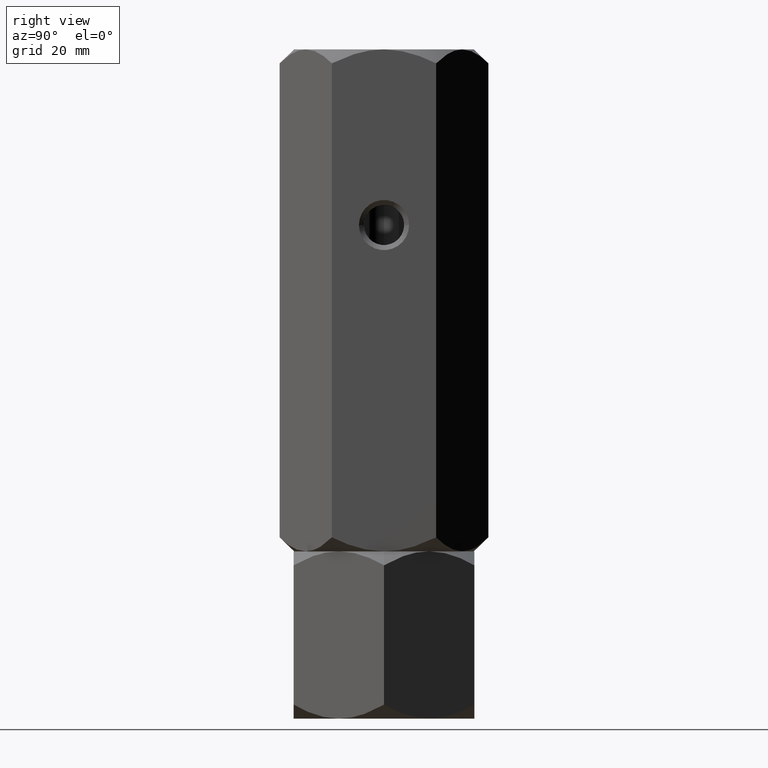
[diagram: clean part render]
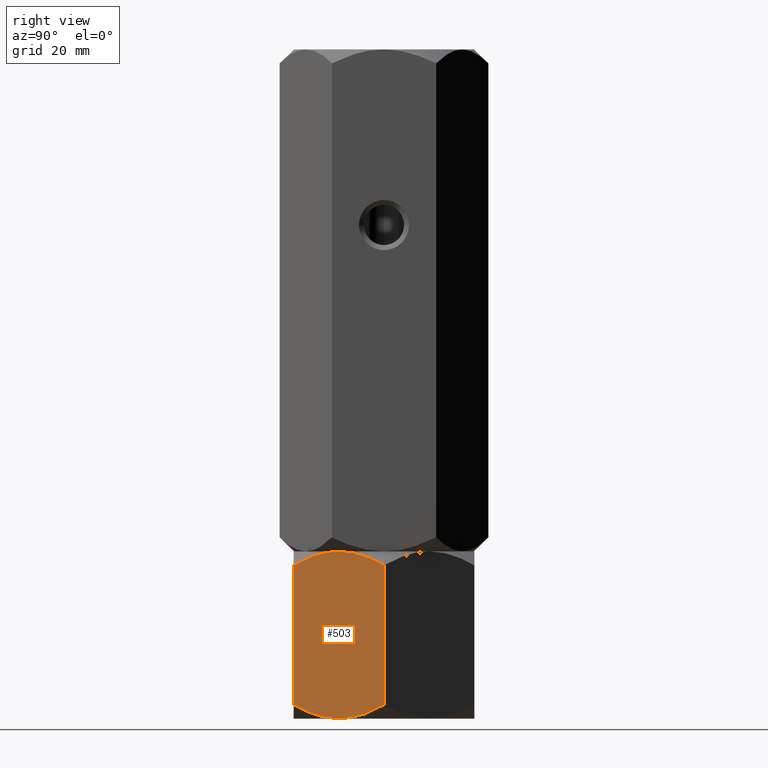
[diagram: same view with one face highlighted and labeled with its STEP entity id]
A machine part, right view. The second image highlights one B-rep face of the part: STEP entity #503.
In plain terms, the highlighted planar face has unit normal (-0.866, 0.5, 0).
Its self-contained STEP definition (entity closure, byte-faithful):
#30 = CARTESIAN_POINT ( 'NONE',  ( 19.97072132548310108, -1.409696000463987353, 31.36261200785025238 ) ) ;
#156 = CARTESIAN_POINT ( 'NONE',  ( 11.20619321075668395, -16.59030399953601531, 1.970721325483048458 ) ) ;
#191 = VECTOR ( 'NONE', #1853, 1000.000000000000000 ) ;
#205 = CARTESIAN_POINT ( 'NONE',  ( 10.39230484541326227, -18.00000000000000000, 30.54872364250678274 ) ) ;
#262 = CARTESIAN_POINT ( 'NONE',  ( 20.78460969082652809, -4.404509159444062513E-16, 2.784609690826518769 ) ) ;
#267 = VERTEX_POINT ( 'NONE', #791 ) ;
#299 = EDGE_CURVE ( 'NONE', #1125, #1255, #953, .T. ) ;
#343 = CARTESIAN_POINT ( 'NONE',  ( 12.04393988858690356, -15.13928418966203182, 1.272574701504241235 ) ) ;
#399 = CARTESIAN_POINT ( 'NONE',  ( 14.44719758599053705, -10.97671975407795131, 33.19461073423471476 ) ) ;
#400 = CARTESIAN_POINT ( 'NONE',  ( 16.04483044561308702, -8.209538469370128766, 0.01733285647409073954 ) ) ;
#411 = VECTOR ( 'NONE', #1935, 1000.000000000000000 ) ;
#418 = CARTESIAN_POINT ( 'NONE',  ( 19.96977770663490048, -1.411330396252048702, 1.969777706634900483 ) ) ;
#441 = CARTESIAN_POINT ( 'NONE',  ( 10.39230484541326227, -18.00000000000000000, 2.784609690826516104 ) ) ;
#490 = ORIENTED_EDGE ( 'NONE', *, *, #2011, .F. ) ;
#500 = CARTESIAN_POINT ( 'NONE',  ( 15.58845726811989429, -9.000000000000001776, 0.000000000000000000 ) ) ;
#503 = ADVANCED_FACE ( 'NONE', ( #1013 ), #855, .F. ) ;
#550 = DIRECTION ( 'NONE',  ( -0.8660254037844385966, 0.5000000000000001110, 0.000000000000000000 ) ) ;
#551 = CARTESIAN_POINT ( 'NONE',  ( 13.77442836864821629, -12.14199022028320130, 32.99277023107802620 ) ) ;
#555 = ORIENTED_EDGE ( 'NONE', *, *, #790, .F. ) ;
#633 = CARTESIAN_POINT ( 'NONE',  ( 15.58845726811989429, -9.000000000000001776, 0.000000000000000000 ) ) ;
#671 = CARTESIAN_POINT ( 'NONE',  ( 20.78460969082652809, 2.339913672068599110E-16, 30.54872364250677919 ) ) ;
#748 = LINE ( 'NONE', #1703, #191 ) ;
#774 = ORIENTED_EDGE ( 'NONE', *, *, #871, .F. ) ;
#790 = EDGE_CURVE ( 'NONE', #1300, #1431, #1726, .T. ) ;
#791 = CARTESIAN_POINT ( 'NONE',  ( 20.78460969082652809, -4.404509159444062513E-16, 2.784609690826518769 ) ) ;
#817 = ORIENTED_EDGE ( 'NONE', *, *, #1645, .F. ) ;
#855 = PLANE ( 'NONE',  #1232 ) ;
#871 = EDGE_CURVE ( 'NONE', #1338, #1255, #1184, .T. ) ;
#909 = CARTESIAN_POINT ( 'NONE',  ( 19.13650452186756112, -2.854601888853813385, 1.277383077889869600 ) ) ;
#953 = LINE ( 'NONE', #1902, #411 ) ;
#1013 = FACE_OUTER_BOUND ( 'NONE', #1856, .T. ) ;
#1015 = CARTESIAN_POINT ( 'NONE',  ( 12.04041001437222214, -15.14539811114618928, 32.05595025544342747 ) ) ;
#1050 = CARTESIAN_POINT ( 'NONE',  ( 15.81600583360881807, -8.605874323383773117, 8.300922883092144309E-16 ) ) ;
#1059 = B_SPLINE_CURVE_WITH_KNOTS ( 'NONE', 3,
 ( #262, #418, #909, #1668, #1350, #1549, #1189, #400, #1050, #1994 ),
 .UNSPECIFIED., .F., .F.,
 ( 4, 2, 2, 2, 4 ),
 ( 2.544307986819122044E-07, 0.005386537354063078605, 0.008079678815695276808, 0.009426249546511375477, 0.01077282027732747414 ),
 .UNSPECIFIED. ) ;
#1077 = CARTESIAN_POINT ( 'NONE',  ( 15.13208409062669446, -9.790461530629873010, 33.31600047685921595 ) ) ;
#1087 = CARTESIAN_POINT ( 'NONE',  ( 15.58845726811989429, -9.000000000000001776, 33.33333333333330017 ) ) ;
#1107 = CARTESIAN_POINT ( 'NONE',  ( 14.68463803553234825, -10.56546083169953754, 1.128247885742727657E-15 ) ) ;
#1125 = VERTEX_POINT ( 'NONE', #205 ) ;
#1184 = B_SPLINE_CURVE_WITH_KNOTS ( 'NONE', 3,
 ( #500, #1107, #1739, #343, #156, #1404 ),
 .UNSPECIFIED., .F., .F.,
 ( 4, 2, 4 ),
 ( 0.01077282027732747414, 0.01612137750481873813, 0.02146993473231000038 ),
 .UNSPECIFIED. ) ;
#1189 = CARTESIAN_POINT ( 'NONE',  ( 16.50312530264320543, -7.415748492146457593, 0.08694689011815548429 ) ) ;
#1232 = AXIS2_PLACEMENT_3D ( 'NONE', #1331, #550, #1817 ) ;
#1255 = VERTEX_POINT ( 'NONE', #441 ) ;
#1300 = VERTEX_POINT ( 'NONE', #1359 ) ;
#1302 = B_SPLINE_CURVE_WITH_KNOTS ( 'NONE', 3,
 ( #1639, #1324, #1015, #1647, #551, #399, #1827, #1077, #2019, #1087 ),
 .UNSPECIFIED., .F., .F.,
 ( 4, 2, 2, 2, 4 ),
 ( 2.544307986796311447E-07, 0.005386537354063074268, 0.008079678815695273339, 0.009426249546511370273, 0.01077282027732746721 ),
 .UNSPECIFIED. ) ;
#1324 = CARTESIAN_POINT ( 'NONE',  ( 11.20713682960488100, -16.58866960374795241, 31.36355562669839614 ) ) ;
#1331 = CARTESIAN_POINT ( 'NONE',  ( 10.39230484541326227, -18.00000000000000000, 33.33333333333330017 ) ) ;
#1338 = VERTEX_POINT ( 'NONE', #633 ) ;
#1350 = CARTESIAN_POINT ( 'NONE',  ( 17.40248616759156874, -5.858009779716798704, 0.3405631022552671472 ) ) ;
#1359 = CARTESIAN_POINT ( 'NONE',  ( 15.58845726811989429, -9.000000000000001776, 33.33333333333330017 ) ) ;
#1404 = CARTESIAN_POINT ( 'NONE',  ( 10.39230484541326227, -18.00000000000000000, 2.784609690826516104 ) ) ;
#1419 = CARTESIAN_POINT ( 'NONE',  ( 17.38072716576608912, -5.895697476400520110, 33.05693742621171083 ) ) ;
#1431 = VERTEX_POINT ( 'NONE', #1966 ) ;
#1441 = CARTESIAN_POINT ( 'NONE',  ( 15.58845726811989429, -9.000000000000001776, 33.33333333333330017 ) ) ;
#1454 = CARTESIAN_POINT ( 'NONE',  ( 16.49227650070744389, -7.434539168300460688, 33.33333333333330017 ) ) ;
#1549 = CARTESIAN_POINT ( 'NONE',  ( 16.72971695024924799, -7.023280245922048692, 0.1387225990985750668 ) ) ;
#1639 = CARTESIAN_POINT ( 'NONE',  ( 10.39230484541326227, -18.00000000000000000, 30.54872364250678274 ) ) ;
#1645 = EDGE_CURVE ( 'NONE', #1431, #267, #748, .T. ) ;
#1647 = CARTESIAN_POINT ( 'NONE',  ( 13.33524813246346952, -12.90267270303527525, 32.79624777750428422 ) ) ;
#1668 = CARTESIAN_POINT ( 'NONE',  ( 17.84166640377631907, -5.097327296964724752, 0.5370855558290092979 ) ) ;
#1703 = CARTESIAN_POINT ( 'NONE',  ( 20.78460969082652809, 0.000000000000000000, 33.33333333333330017 ) ) ;
#1711 = EDGE_CURVE ( 'NONE', #267, #1338, #1059, .T. ) ;
#1726 = B_SPLINE_CURVE_WITH_KNOTS ( 'NONE', 3,
 ( #1441, #1454, #1419, #1780, #30, #671 ),
 .UNSPECIFIED., .F., .F.,
 ( 4, 2, 4 ),
 ( 0.01077282027732746721, 0.01612137750481873466, 0.02146993473231000038 ),
 .UNSPECIFIED. ) ;
#1737 = ORIENTED_EDGE ( 'NONE', *, *, #1711, .F. ) ;
#1739 = CARTESIAN_POINT ( 'NONE',  ( 13.79618737047370125, -12.10430252359947900, 0.2763959071215842944 ) ) ;
#1780 = CARTESIAN_POINT ( 'NONE',  ( 19.13297464765288325, -2.860715810337963738, 32.06075863182904584 ) ) ;
#1817 = DIRECTION ( 'NONE',  ( -0.5000000000000001110, -0.8660254037844385966, 0.000000000000000000 ) ) ;
#1827 = CARTESIAN_POINT ( 'NONE',  ( 14.67378923359658138, -10.58425150785354418, 33.24638644321514391 ) ) ;
#1853 = DIRECTION ( 'NONE',  ( -0.000000000000000000, -0.000000000000000000, -1.000000000000000000 ) ) ;
#1856 = EDGE_LOOP ( 'NONE', ( #490, #2033, #774, #1737, #817, #555 ) ) ;
#1902 = CARTESIAN_POINT ( 'NONE',  ( 10.39230484541326227, -18.00000000000000000, 33.33333333333330017 ) ) ;
#1935 = DIRECTION ( 'NONE',  ( -0.000000000000000000, -0.000000000000000000, -1.000000000000000000 ) ) ;
#1966 = CARTESIAN_POINT ( 'NONE',  ( 20.78460969082652809, 2.339913672068599110E-16, 30.54872364250677919 ) ) ;
#1994 = CARTESIAN_POINT ( 'NONE',  ( 15.58845726811989429, -9.000000000000001776, 0.000000000000000000 ) ) ;
#2011 = EDGE_CURVE ( 'NONE', #1125, #1300, #1302, .T. ) ;
#2019 = CARTESIAN_POINT ( 'NONE',  ( 15.36090870263097230, -9.394125676616233989, 33.33333333333330728 ) ) ;
#2033 = ORIENTED_EDGE ( 'NONE', *, *, #299, .T. ) ;